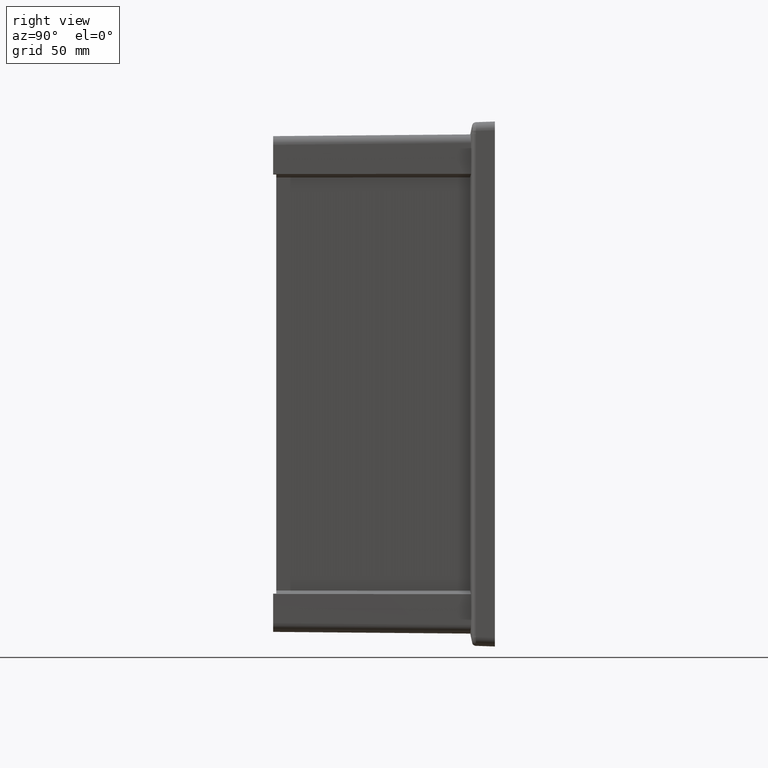
[diagram: clean part render]
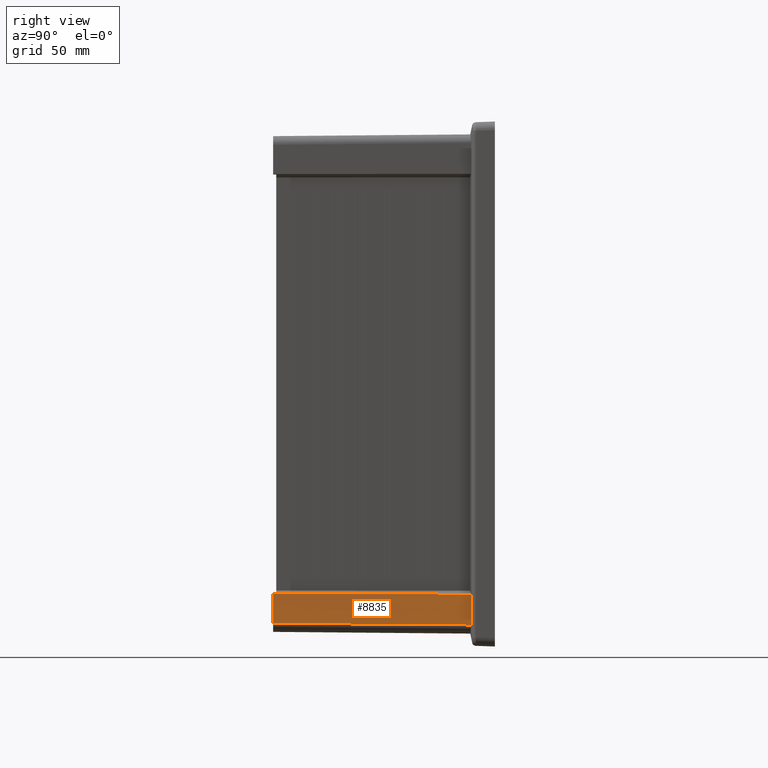
[diagram: same view with one face highlighted and labeled with its STEP entity id]
A machine part, right view. The second image highlights one B-rep face of the part: STEP entity #8835.
In plain terms, the highlighted planar face has unit normal (1, -0.0087, 0).
Its self-contained STEP definition (entity closure, byte-faithful):
#1236=CARTESIAN_POINT('',(1.325071604518E2,-1.405E2,-1.515073698854E2));
#1284=DIRECTION('',(-6.907671079831E-12,5.548465776165E-10,-1.E0));
#1285=VECTOR('',#1284,1.849474047233E1);
#1286=CARTESIAN_POINT('',(1.325071604521E2,-1.405E2,-1.330126294083E2));
#1287=LINE('',#1286,#1285);
#1288=DIRECTION('',(-4.363235682831E-3,-9.999559026827E-1,-8.315940373937E-3));
#1289=VECTOR('',#1288,2.000088190875E0);
#1290=CARTESIAN_POINT('',(1.325158873083E2,-1.385000000076E2,
-1.329959967942E2));
#1291=LINE('',#1290,#1289);
#1292=DIRECTION('',(-8.750110575905E-3,-9.999612616973E-1,9.542901482181E-4));
#1293=VECTOR('',#1292,1.233613797494E2);
#1294=CARTESIAN_POINT('',(1.335953130219E2,-1.514339906874E1,
-1.331137193435E2));
#1295=LINE('',#1294,#1293);
#1296=DIRECTION('',(-2.990986227193E-4,-6.357613872757E-5,9.999999532490E-1));
#1297=VECTOR('',#1296,1.948763278878E1);
#1298=CARTESIAN_POINT('',(1.336011417460E2,-1.514216012030E1,
-1.526013512213E2));
#1299=LINE('',#1298,#1297);
#1300=DIRECTION('',(8.726203235507E-3,9.999238504745E-1,-8.726203607187E-3));
#1301=VECTOR('',#1300,1.253673865364E2);
#1302=CARTESIAN_POINT('',(1.325071604520E2,-1.404999999897E2,
-1.515073698806E2));
#1303=LINE('',#1302,#1301);
#1319=CARTESIAN_POINT('',(1.336011417460E2,-1.514216012030E1,
-1.526013512213E2));
#6123=CARTESIAN_POINT('',(1.325158873083E2,-1.385000000076E2,
-1.329959967942E2));
#6124=VERTEX_POINT('',#6123);
#6330=CARTESIAN_POINT('',(1.325071604521E2,-1.405E2,-1.330126294083E2));
#6331=VERTEX_POINT('',#6330);
#6343=VERTEX_POINT('',#1236);
#6906=VERTEX_POINT('',#1319);
#6907=CARTESIAN_POINT('',(1.335953130219E2,-1.514339906874E1,
-1.331137193435E2));
#6908=VERTEX_POINT('',#6907);
#8820=CARTESIAN_POINT('',(1.330541510995E2,-7.782108006150E1,
-1.427991325835E2));
#8821=DIRECTION('',(9.999619230642E-1,-8.726535497244E-3,0.E0));
#8822=DIRECTION('',(8.726535497244E-3,9.999619230642E-1,0.E0));
#8823=AXIS2_PLACEMENT_3D('',#8820,#8821,#8822);
#8824=PLANE('',#8823);
#8825=ORIENTED_EDGE('',*,*,#8768,.F.);
#8826=ORIENTED_EDGE('',*,*,#8813,.F.);
#8828=ORIENTED_EDGE('',*,*,#8827,.F.);
#8830=ORIENTED_EDGE('',*,*,#8829,.F.);
#8832=ORIENTED_EDGE('',*,*,#8831,.F.);
#8833=EDGE_LOOP('',(#8825,#8826,#8828,#8830,#8832));
#8834=FACE_OUTER_BOUND('',#8833,.F.);
#8835=ADVANCED_FACE('',(#8834),#8824,.T.);
#8768=EDGE_CURVE('',#6331,#6343,#1287,.T.);
#8813=EDGE_CURVE('',#6124,#6331,#1291,.T.);
#8827=EDGE_CURVE('',#6908,#6124,#1295,.T.);
#8829=EDGE_CURVE('',#6906,#6908,#1299,.T.);
#8831=EDGE_CURVE('',#6343,#6906,#1303,.T.);